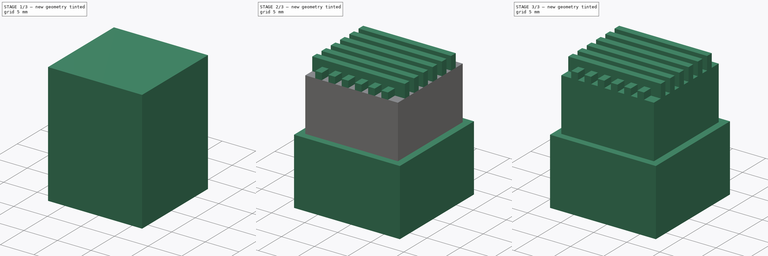
[diagram: build sequence overview — one tinted view per stage of 3, left to right]
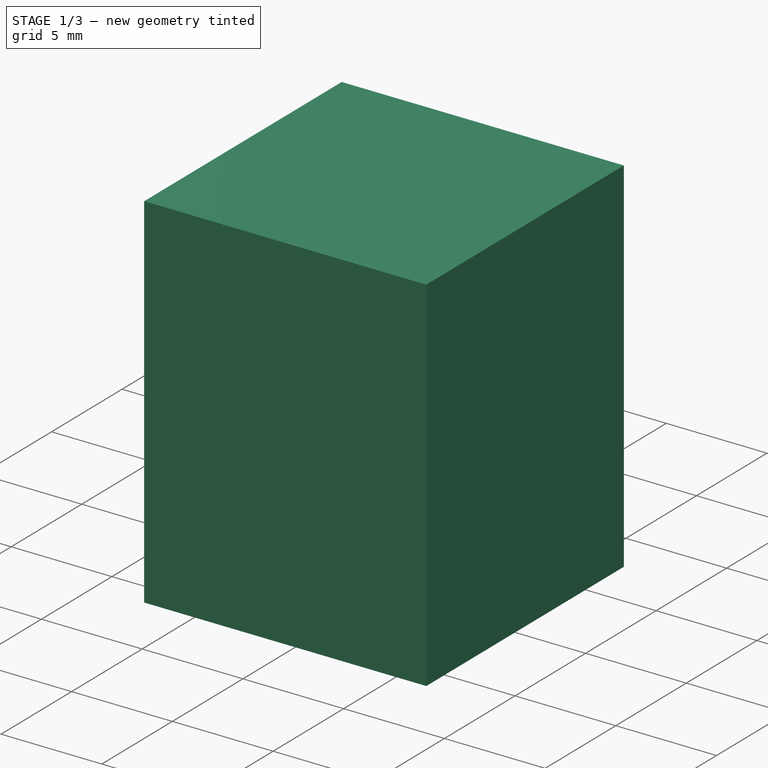
[diagram: stage 1 of 3 — iso view after this stage's code; geometry added in this stage tinted green]
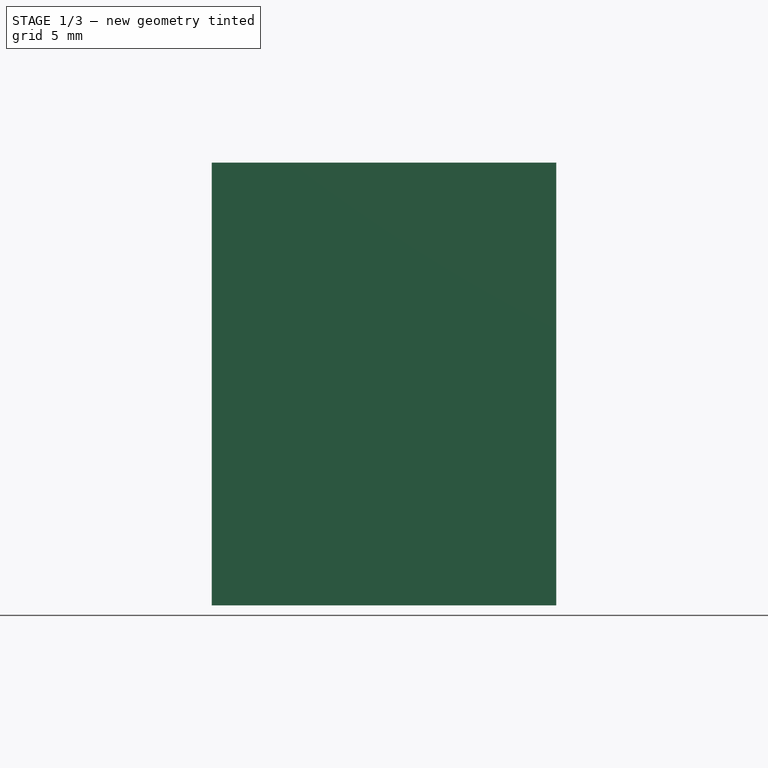
[diagram: stage 1 of 3 — front view after this stage's code; geometry added in this stage tinted green]
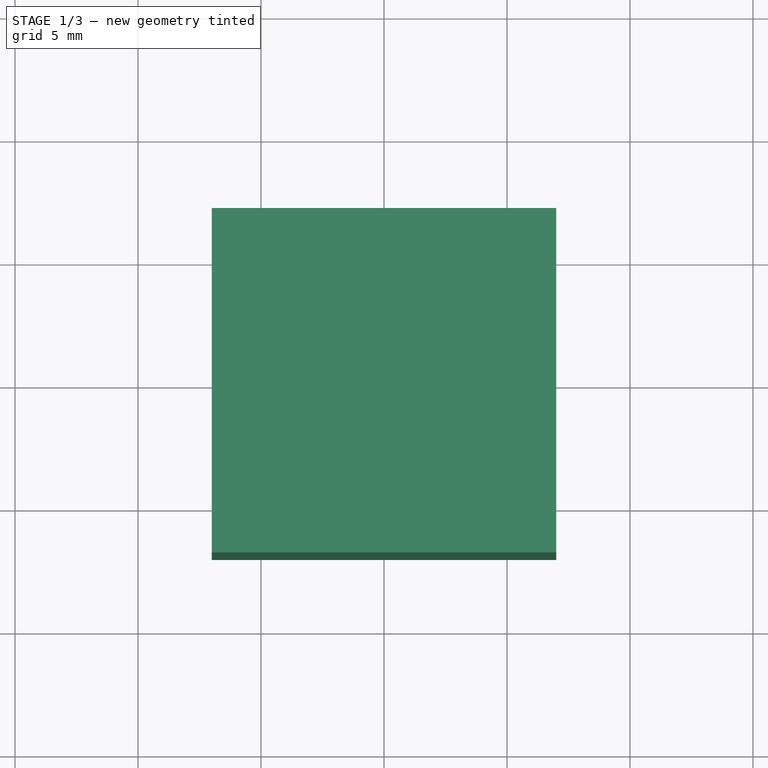
[diagram: stage 1 of 3 — top view after this stage's code; geometry added in this stage tinted green]
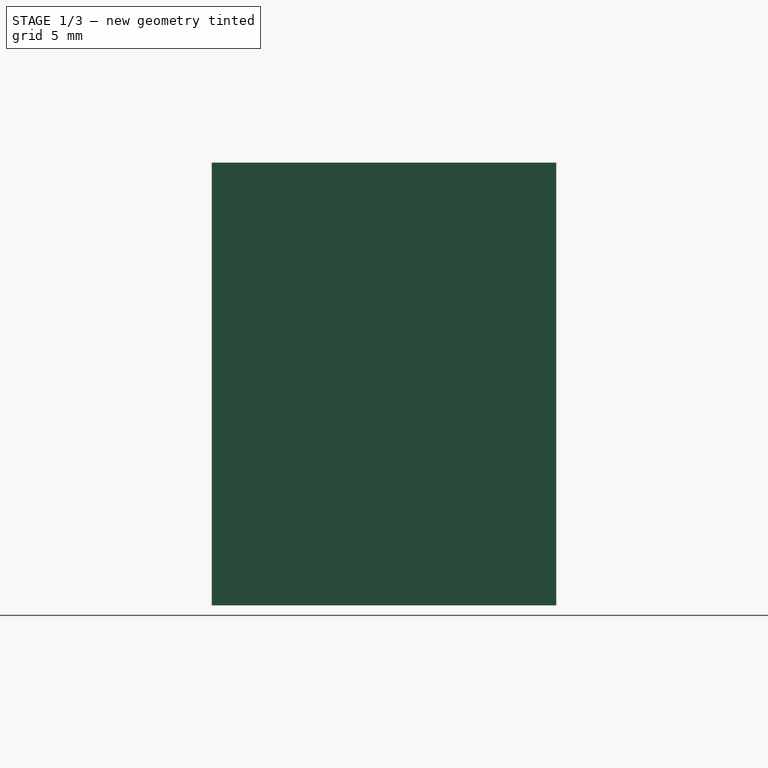
[diagram: stage 1 of 3 — right view after this stage's code; geometry added in this stage tinted green]
FCSTD DOCUMENT  (FreeCAD 0.18.3R)
Label: cross_lines
License: All rights reserved
LicenseURL: http://en.wikipedia.org/wiki/All_rights_reserved
objects: Part::Box×2, Sketcher::SketchObject×2, PartDesign::Pad×2, PartDesign::AdditiveBox×1, PartDesign::Body×1, Part::MultiFuse×1, Part::Cut×1
note: 13 computed .brp shape members not serialized (recipe doc carries the construction recipe); baked Part::Feature solids carry a one-line shape summary decoded from their .brp

FEATURE [PartDesign::AdditiveBox] Box002
  AttacherType = Attacher::AttachEngine3D
  AttachmentOffset = pos=(-7,-7,0) rot=(0,0,1;0rad)
  Height = 18
  Length = 14
  MapMode = 5
  Placement = pos=(-7,-7,0) rot=(0,0,1;0rad)
  Support = -> [XY_Plane]
  Width = 14
FEATURE [Part::Box] Box003  label="Cube001"
  AttacherType = Attacher::AttachEngine3D
  Height = 16
  Length = 10
  Placement = pos=(-5,-5,0) rot=(0,0,1;0rad)
  Width = 10
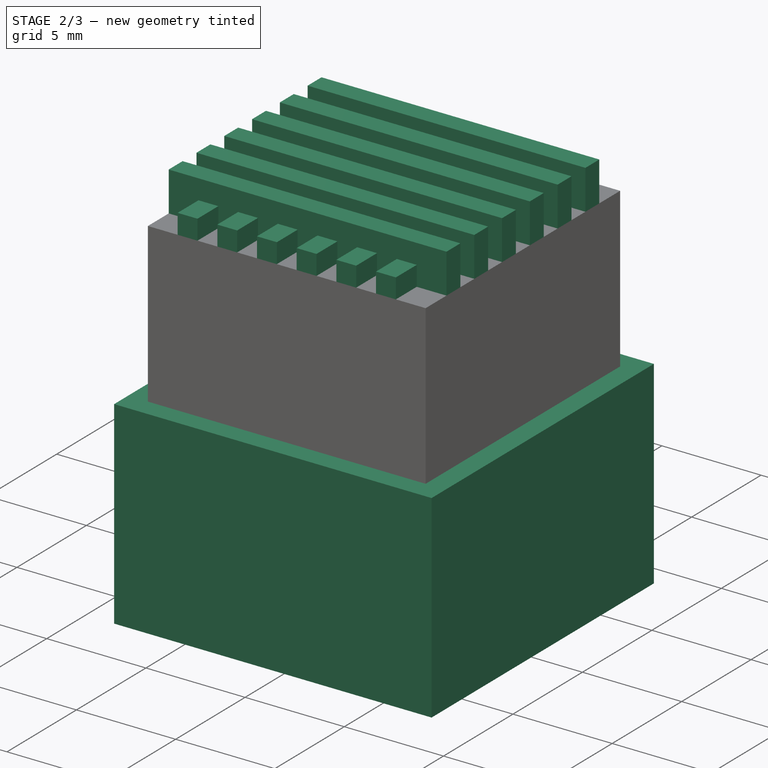
[diagram: stage 2 of 3 — iso view after this stage's code; geometry added in this stage tinted green]
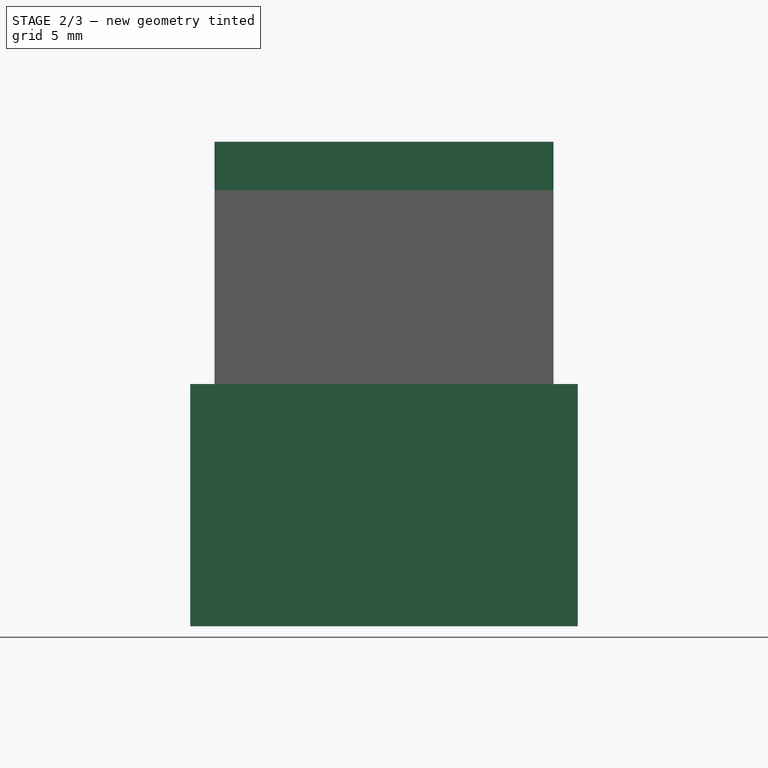
[diagram: stage 2 of 3 — front view after this stage's code; geometry added in this stage tinted green]
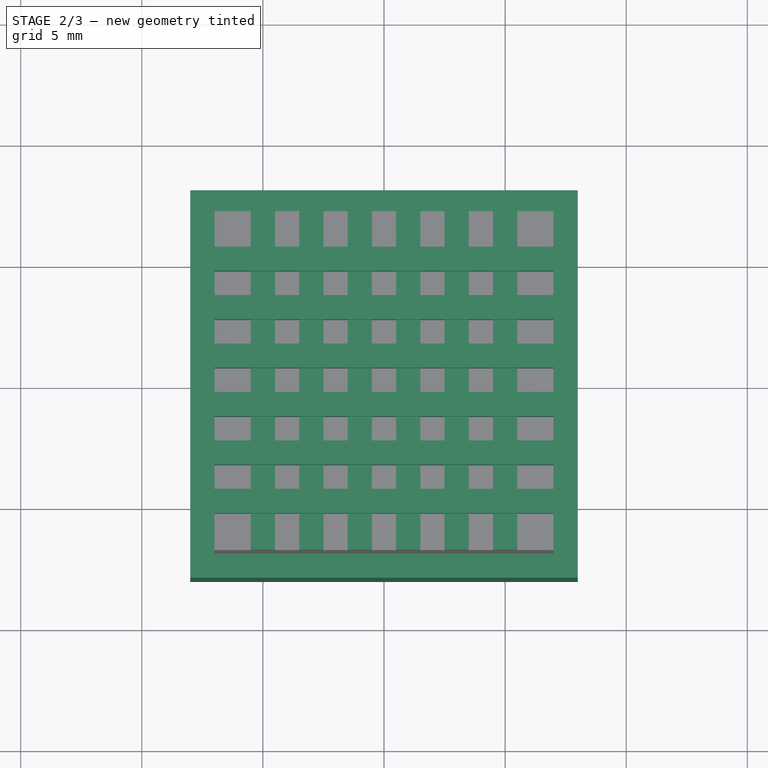
[diagram: stage 2 of 3 — top view after this stage's code; geometry added in this stage tinted green]
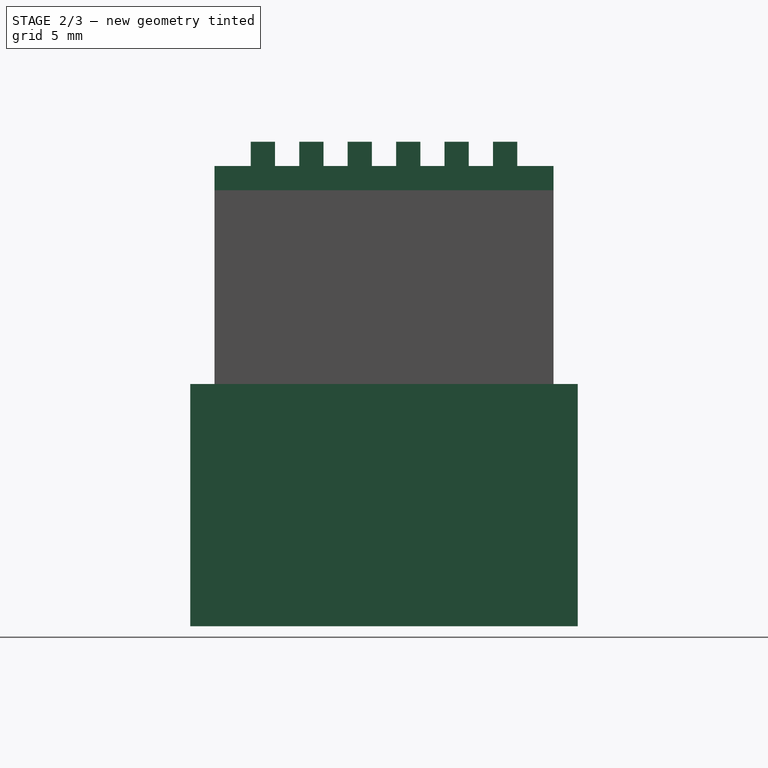
[diagram: stage 2 of 3 — right view after this stage's code; geometry added in this stage tinted green]
FEATURE [Part::Box] Box  label="Cube"
  AttacherType = Attacher::AttachEngine3D
  Height = 10
  Length = 16
  Placement = pos=(-8,-8,0) rot=(0,0,1;0rad)
  Width = 16
FEATURE [Sketcher::SketchObject] Sketch
  MapMode = 5
  Placement = pos=(-7,-7,18) rot=(0,0,1;0rad)
  Support = -> [Box002]
  sketch-geometry (29):
    g0: LineSegment StartX=0 StartY=10.5 StartZ=0 EndX=14 EndY=10.5 EndZ=0
    g1: LineSegment StartX=14 StartY=10.5 StartZ=0 EndX=14 EndY=9.5 EndZ=0
    g2: LineSegment StartX=14 StartY=9.5 StartZ=0 EndX=0 EndY=9.5 EndZ=0
    g3: LineSegment StartX=0 StartY=9.5 StartZ=0 EndX=0 EndY=10.5 EndZ=0
    g4: LineSegment StartX=0 StartY=8.5 StartZ=0 EndX=14 EndY=8.5 EndZ=0
    g5: LineSegment StartX=14 StartY=8.5 StartZ=0 EndX=14 EndY=7.5 EndZ=0
    g6: LineSegment StartX=14 StartY=7.5 StartZ=0 EndX=0 EndY=7.5 EndZ=0
    g7: LineSegment StartX=0 StartY=7.5 StartZ=0 EndX=0 EndY=8.5 EndZ=0
    g8: LineSegment StartX=8e-16 StartY=6.5 StartZ=0 EndX=14 EndY=6.5 EndZ=0
    g9: LineSegment StartX=14 StartY=6.5 StartZ=0 EndX=14 EndY=5.5 EndZ=0
    g10: LineSegment StartX=8e-16 StartY=5.5 StartZ=0 EndX=8e-16 EndY=6.5 EndZ=0
    g11: LineSegment StartX=0 StartY=4.5 StartZ=0 EndX=14 EndY=4.5 EndZ=0
    g12: LineSegment StartX=14 StartY=4.5 StartZ=0 EndX=14 EndY=3.5 EndZ=0
    g13: LineSegment StartX=14 StartY=3.5 StartZ=0 EndX=0 EndY=3.5 EndZ=0
    g14: LineSegment StartX=0 StartY=3.5 StartZ=0 EndX=0 EndY=4.5 EndZ=0
    g15: LineSegment StartX=0 StartY=2.5 StartZ=0 EndX=14 EndY=2.5 EndZ=0
    g16: LineSegment StartX=14 StartY=2.5 StartZ=0 EndX=14 EndY=1.5 EndZ=0
    g17: LineSegment StartX=14 StartY=1.5 StartZ=0 EndX=0 EndY=1.5 EndZ=0
    g18: LineSegment StartX=0 StartY=1.5 StartZ=0 EndX=0 EndY=2.5 EndZ=0
    g19: LineSegment [constr] StartX=14 StartY=9.5 StartZ=0 EndX=14 EndY=8.5 EndZ=0
    g20: LineSegment [constr] StartX=14 StartY=7.5 StartZ=0 EndX=14 EndY=6.5 EndZ=0
    g21: LineSegment [constr] StartX=14 StartY=5.5 StartZ=0 EndX=14 EndY=4.5 EndZ=0
    g22: LineSegment [constr] StartX=14 StartY=3.5 StartZ=0 EndX=14 EndY=2.5 EndZ=0
    g23: LineSegment StartX=0 StartY=12.5 StartZ=0 EndX=14 EndY=12.5 EndZ=0
    g24: LineSegment StartX=14 StartY=12.5 StartZ=0 EndX=14 EndY=11.5 EndZ=0
    g25: LineSegment StartX=14 StartY=11.5 StartZ=0 EndX=0 EndY=11.5 EndZ=0
    g26: LineSegment StartX=0 StartY=11.5 StartZ=0 EndX=0 EndY=12.5 EndZ=0
    g27: LineSegment [constr] StartX=14 StartY=10.5 StartZ=0 EndX=14 EndY=11.5 EndZ=0
    g28: LineSegment StartX=8e-16 StartY=5.5 StartZ=0 EndX=14 EndY=5.5 EndZ=0
  constraints (82):
    c: Coincident(g0,g1)
    c: Coincident(g1,g2)
    c: Coincident(g2,g3)
    c: Coincident(g3,g0)
    c: Horizontal(g0)
    c: Horizontal(g2)
    c: Vertical(g1)
    c: Vertical(g3)
    c: Coincident(g4,g5)
    c: Coincident(g5,g6)
    c: Coincident(g6,g7)
    c: Coincident(g7,g4)
    c: Horizontal(g4)
    c: Horizontal(g6)
    c: Vertical(g5)
    c: Vertical(g7)
    c: Coincident(g8,g9)
    c: Coincident(g10,g8)
    c: Horizontal(g8)
    c: Vertical(g9)
    c: Vertical(g10)
    c: Coincident(g11,g12)
    c: Coincident(g12,g13)
    c: Coincident(g13,g14)
    c: Coincident(g14,g11)
    c: Horizontal(g11)
    c: Horizontal(g13)
    c: Vertical(g12)
    c: Vertical(g14)
    c: Coincident(g15,g16)
    c: Coincident(g16,g17)
    c: Coincident(g17,g18)
    c: Coincident(g18,g15)
    c: Horizontal(g15)
    c: Horizontal(g17)
    c: Vertical(g16)
    c: Vertical(g18)
    c: Equal(g16,g22)
    c: Coincident(g15,g22)
    c: Equal(g22,g12)
    c: Equal(g12,g21)
    c: Coincident(g11,g21)
    c: Coincident(g19,g1)
    c: Vertical(g19)
    c: Coincident(g19,g4)
    c: Coincident(g5,g20)
    c: Vertical(g20)
    c: Coincident(g20,g8)
    c: Coincident(g9,g21)
    c: Vertical(g21)
    c: Coincident(g12,g22)
    c: Vertical(g22)
    c: Equal(g9,g21)
    c: Equal(g20,g5)
    c: Equal(g20,g9)
    c: Equal(g19,g5)
    c: Equal(g1,g19)
    c: DistanceY(g1,g1) = 1
    c: DistanceX(g17,g17) = 14  'e'
    c: Equal(g2,g4)
    c: Equal(g6,g8)
    c: Equal(g13,g15)
    c: PointOnObject(g17,g-2)
    c: Coincident(g23,g24)
    c: Coincident(g24,g25)
    c: Coincident(g25,g26)
    c: Coincident(g26,g23)
    c: Horizontal(g23)
    c: Horizontal(g25)
    c: Vertical(g24)
    c: Vertical(g26)
    c: Vertical(g27)
    c: Coincident(g24,g27)
    c: Coincident(g27,g0)
    c: Equal(g25,g0)
    c: Equal(g24,g27)
    c: Equal(g27,g1)
    c: Coincident(g9,g28)
    c: Horizontal(g28)
    c: Coincident(g28,g10)
    c: Equal(g11,g28)
    c: DistanceY(g-1,g6) = 7.5
FEATURE [PartDesign::Pad] Pad
  BaseFeature = -> Box002
  Length = 2
  Length2 = 100
  Placement = pos=(-7,-7,0) rot=(0,0,1;0rad)
  Profile = -> Sketch
  Type = 0
FEATURE [Sketcher::SketchObject] Sketch001
  AttachmentOffset = pos=(14,0,0) rot=(0,0,1;1.5708rad)
  MapMode = 5
  Placement = pos=(7,-7,18) rot=(0,0,1;1.5708rad)
  Support = -> [Box002]
  sketch-geometry (29):
    g0: LineSegment StartX=0 StartY=10.5 StartZ=0 EndX=14 EndY=10.5 EndZ=0
    g1: LineSegment StartX=14 StartY=10.5 StartZ=0 EndX=14 EndY=9.5 EndZ=0
    g2: LineSegment StartX=14 StartY=9.5 StartZ=0 EndX=0 EndY=9.5 EndZ=0
    g3: LineSegment StartX=0 StartY=9.5 StartZ=0 EndX=0 EndY=10.5 EndZ=0
    g4: LineSegment StartX=0 StartY=8.5 StartZ=0 EndX=14 EndY=8.5 EndZ=0
    g5: LineSegment StartX=14 StartY=8.5 StartZ=0 EndX=14 EndY=7.5 EndZ=0
    g6: LineSegment StartX=14 StartY=7.5 StartZ=0 EndX=0 EndY=7.5 EndZ=0
    g7: LineSegment StartX=0 StartY=7.5 StartZ=0 EndX=0 EndY=8.5 EndZ=0
    g8: LineSegment StartX=8e-16 StartY=6.5 StartZ=0 EndX=14 EndY=6.5 EndZ=0
    g9: LineSegment StartX=14 StartY=6.5 StartZ=0 EndX=14 EndY=5.5 EndZ=0
    g10: LineSegment StartX=8e-16 StartY=5.5 StartZ=0 EndX=8e-16 EndY=6.5 EndZ=0
    g11: LineSegment StartX=0 StartY=4.5 StartZ=0 EndX=14 EndY=4.5 EndZ=0
    g12: LineSegment StartX=14 StartY=4.5 StartZ=0 EndX=14 EndY=3.5 EndZ=0
    g13: LineSegment StartX=14 StartY=3.5 StartZ=0 EndX=0 EndY=3.5 EndZ=0
    g14: LineSegment StartX=0 StartY=3.5 StartZ=0 EndX=0 EndY=4.5 EndZ=0
    g15: LineSegment StartX=0 StartY=2.5 StartZ=0 EndX=14 EndY=2.5 EndZ=0
    g16: LineSegment StartX=14 StartY=2.5 StartZ=0 EndX=14 EndY=1.5 EndZ=0
    g17: LineSegment StartX=14 StartY=1.5 StartZ=0 EndX=0 EndY=1.5 EndZ=0
    g18: LineSegment StartX=0 StartY=1.5 StartZ=0 EndX=0 EndY=2.5 EndZ=0
    g19: LineSegment [constr] StartX=14 StartY=9.5 StartZ=0 EndX=14 EndY=8.5 EndZ=0
    g20: LineSegment [constr] StartX=14 StartY=7.5 StartZ=0 EndX=14 EndY=6.5 EndZ=0
    g21: LineSegment [constr] StartX=14 StartY=5.5 StartZ=0 EndX=14 EndY=4.5 EndZ=0
    g22: LineSegment [constr] StartX=14 StartY=3.5 StartZ=0 EndX=14 EndY=2.5 EndZ=0
    g23: LineSegment StartX=0 StartY=12.5 StartZ=0 EndX=14 EndY=12.5 EndZ=0
    g24: LineSegment StartX=14 StartY=12.5 StartZ=0 EndX=14 EndY=11.5 EndZ=0
    g25: LineSegment StartX=14 StartY=11.5 StartZ=0 EndX=0 EndY=11.5 EndZ=0
    g26: LineSegment StartX=0 StartY=11.5 StartZ=0 EndX=0 EndY=12.5 EndZ=0
    g27: LineSegment [constr] StartX=14 StartY=10.5 StartZ=0 EndX=14 EndY=11.5 EndZ=0
    g28: LineSegment StartX=8e-16 StartY=5.5 StartZ=0 EndX=14 EndY=5.5 EndZ=0
  constraints (82):
    c: Coincident(g0,g1)
    c: Coincident(g1,g2)
    c: Coincident(g2,g3)
    c: Coincident(g3,g0)
    c: Horizontal(g0)
    c: Horizontal(g2)
    c: Vertical(g1)
    c: Vertical(g3)
    c: Coincident(g4,g5)
    c: Coincident(g5,g6)
    c: Coincident(g6,g7)
    c: Coincident(g7,g4)
    c: Horizontal(g4)
    c: Horizontal(g6)
    c: Vertical(g5)
    c: Vertical(g7)
    c: Coincident(g8,g9)
    c: Coincident(g10,g8)
    c: Horizontal(g8)
    c: Vertical(g9)
    c: Vertical(g10)
    c: Coincident(g11,g12)
    c: Coincident(g12,g13)
    c: Coincident(g13,g14)
    c: Coincident(g14,g11)
    c: Horizontal(g11)
    c: Horizontal(g13)
    c: Vertical(g12)
    c: Vertical(g14)
    c: Coincident(g15,g16)
    c: Coincident(g16,g17)
    c: Coincident(g17,g18)
    c: Coincident(g18,g15)
    c: Horizontal(g15)
    c: Horizontal(g17)
    c: Vertical(g16)
    c: Vertical(g18)
    c: Equal(g16,g22)
    c: Coincident(g15,g22)
    c: Equal(g22,g12)
    c: Equal(g12,g21)
    c: Coincident(g11,g21)
    c: Coincident(g19,g1)
    c: Vertical(g19)
    c: Coincident(g19,g4)
    c: Coincident(g5,g20)
    c: Vertical(g20)
    c: Coincident(g20,g8)
    c: Coincident(g9,g21)
    c: Vertical(g21)
    c: Coincident(g12,g22)
    c: Vertical(g22)
    c: Equal(g9,g21)
    c: Equal(g20,g5)
    c: Equal(g20,g9)
    c: Equal(g19,g5)
    c: Equal(g1,g19)
    c: DistanceY(g1,g1) = 1
    c: DistanceX(g17,g17) = 14  'e'
    c: Equal(g2,g4)
    c: Equal(g6,g8)
    c: Equal(g13,g15)
    c: PointOnObject(g17,g-2)
    c: Coincident(g23,g24)
    c: Coincident(g24,g25)
    c: Coincident(g25,g26)
    c: Coincident(g26,g23)
    c: Horizontal(g23)
    c: Horizontal(g25)
    c: Vertical(g24)
    c: Vertical(g26)
    c: Vertical(g27)
    c: Coincident(g24,g27)
    c: Coincident(g27,g0)
    c: Equal(g25,g0)
    c: Equal(g24,g27)
    c: Equal(g27,g1)
    c: Coincident(g9,g28)
    c: Horizontal(g28)
    c: Coincident(g28,g10)
    c: Equal(g11,g28)
    c: DistanceY(g-1,g6) = 7.5
FEATURE [PartDesign::Pad] Pad001
  BaseFeature = -> Pad
  Length = 1
  Length2 = 100
  Placement = pos=(-7,-7,0) rot=(0,0,1;0rad)
  Profile = -> Sketch001
  Type = 0
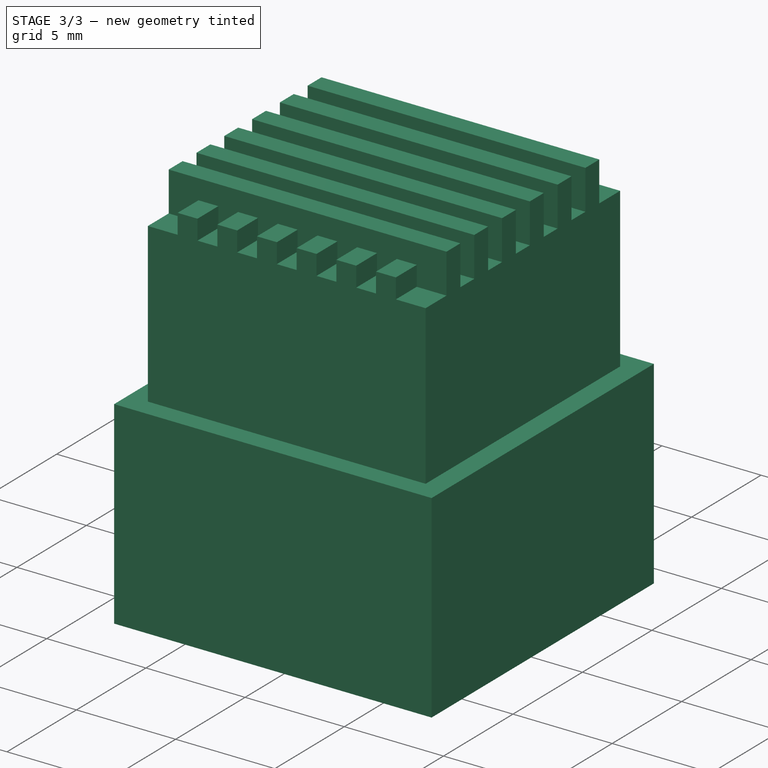
[diagram: stage 3 of 3 — iso view after this stage's code; geometry added in this stage tinted green]
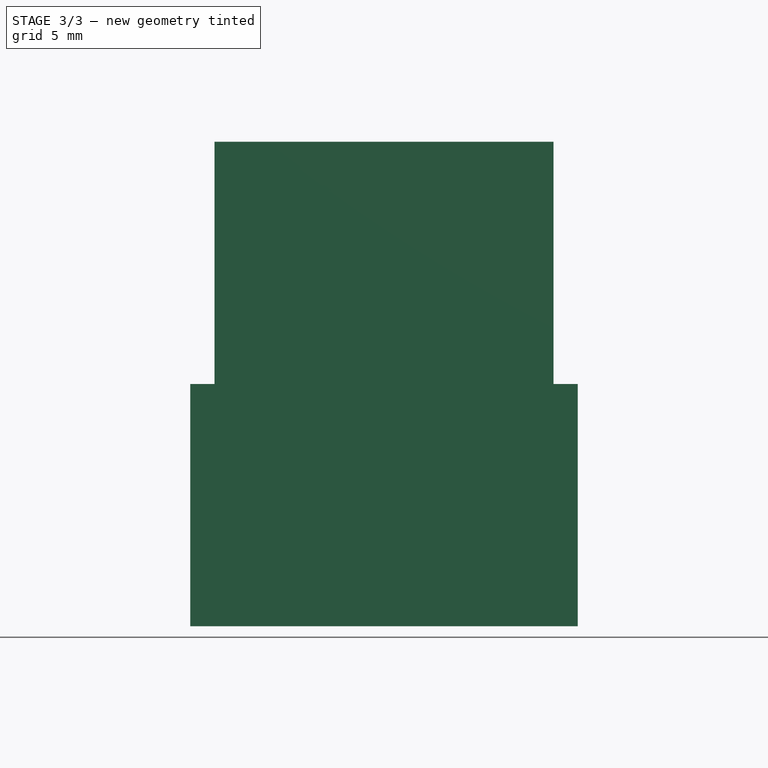
[diagram: stage 3 of 3 — front view after this stage's code; geometry added in this stage tinted green]
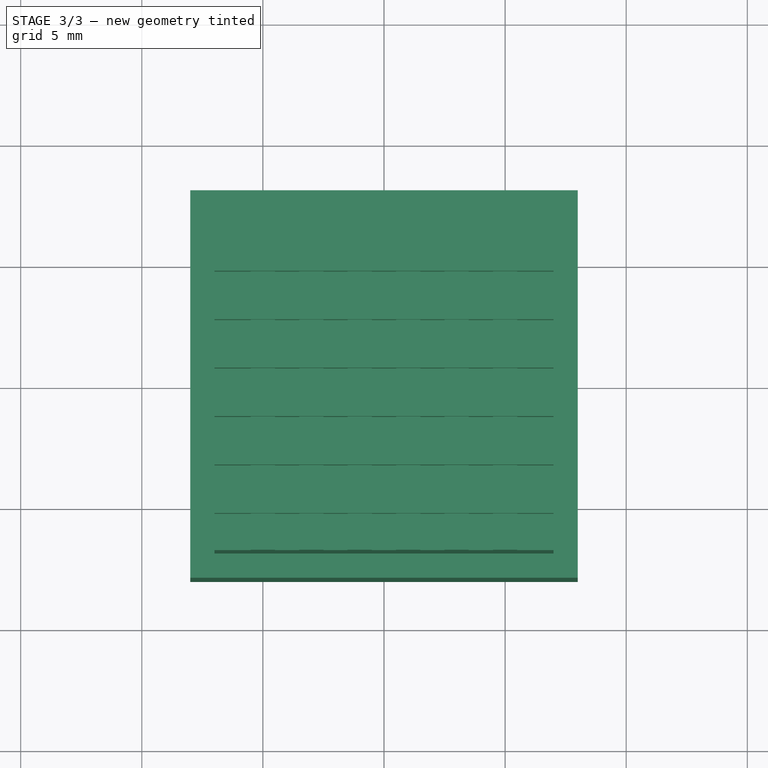
[diagram: stage 3 of 3 — top view after this stage's code; geometry added in this stage tinted green]
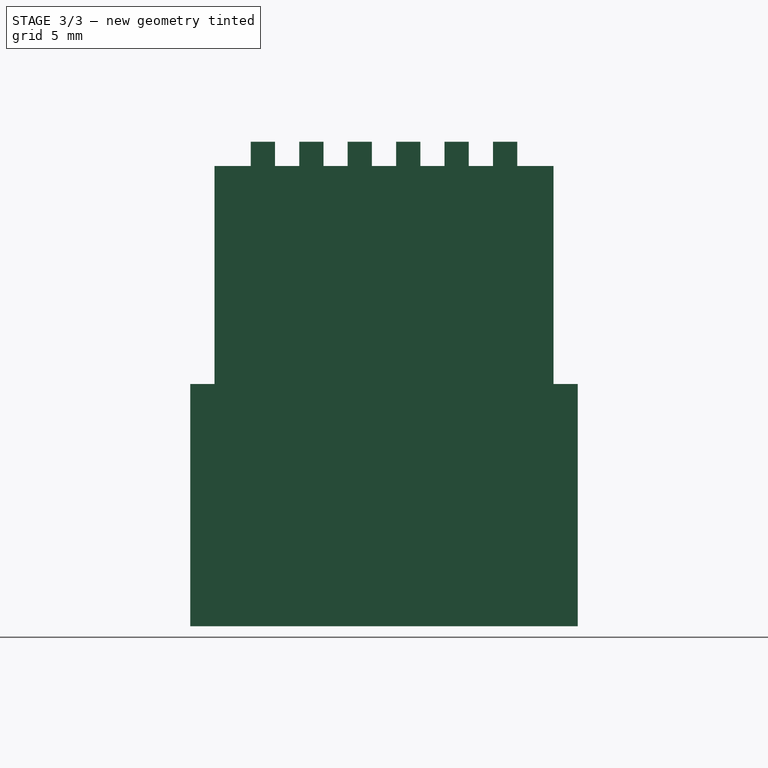
[diagram: stage 3 of 3 — right view after this stage's code; geometry added in this stage tinted green]
FEATURE [PartDesign::Body] Body
  Group = -> [Box002,Sketch,Pad,Sketch001,Pad001]
  Origin = -> Origin
  Tip = -> Pad001
FEATURE [Part::MultiFuse] Fusion
  Shapes = -> [Body,Box]
FEATURE [Part::Cut] Cut
  Base = -> Fusion
  Tool = -> Box003
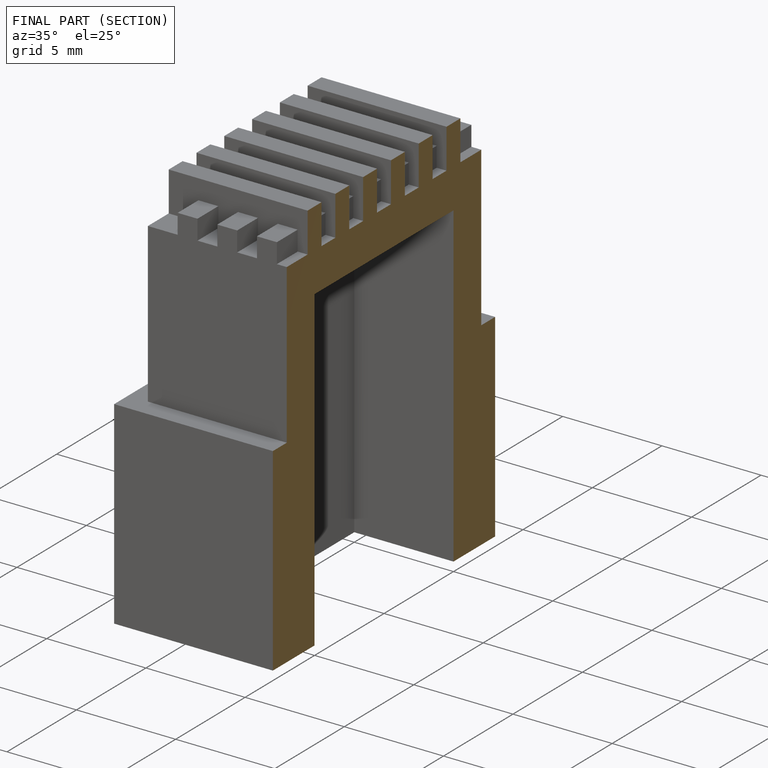
[diagram: finished part — half-section view (interior)]
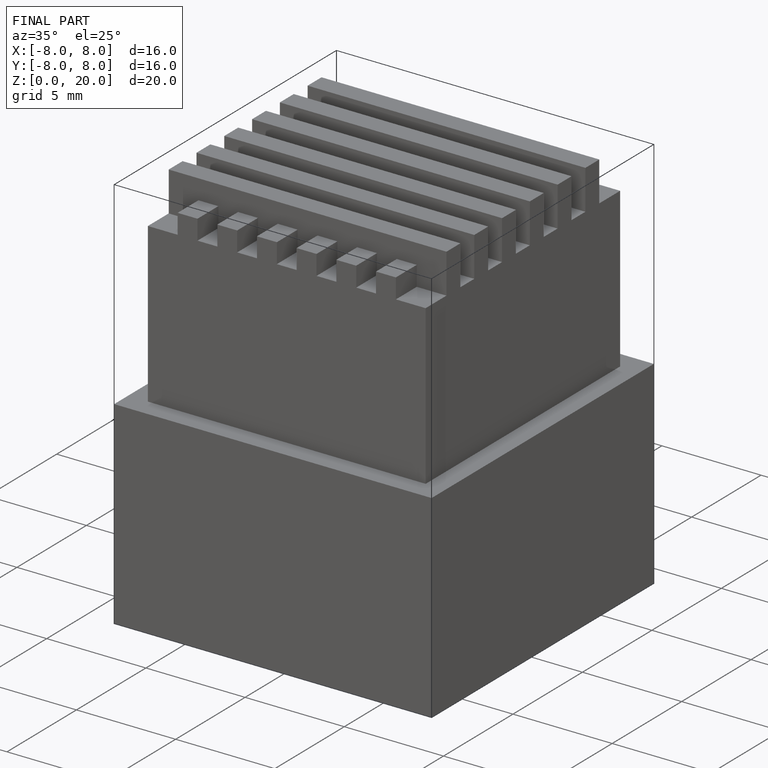
[diagram: finished part — iso view with bounding-box wireframe]
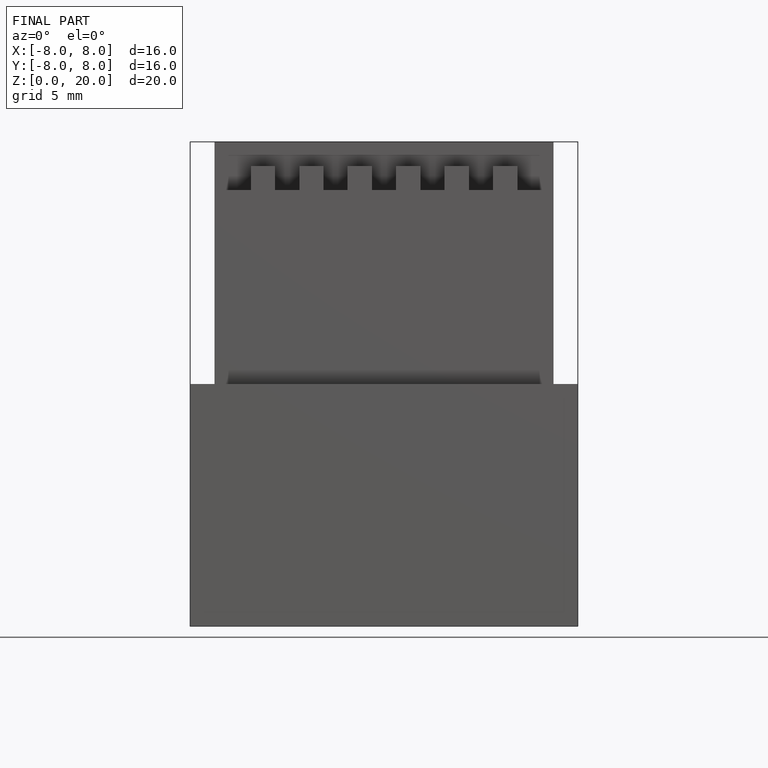
[diagram: finished part — front view with bounding-box wireframe]
